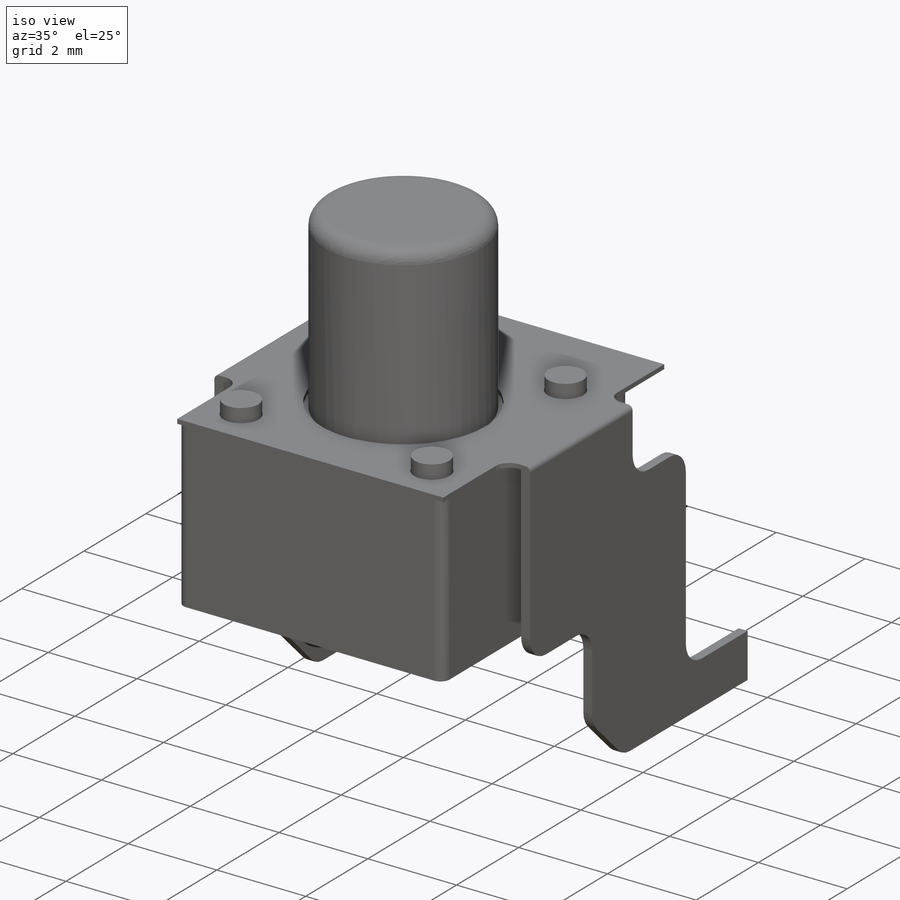
[diagram: iso view]
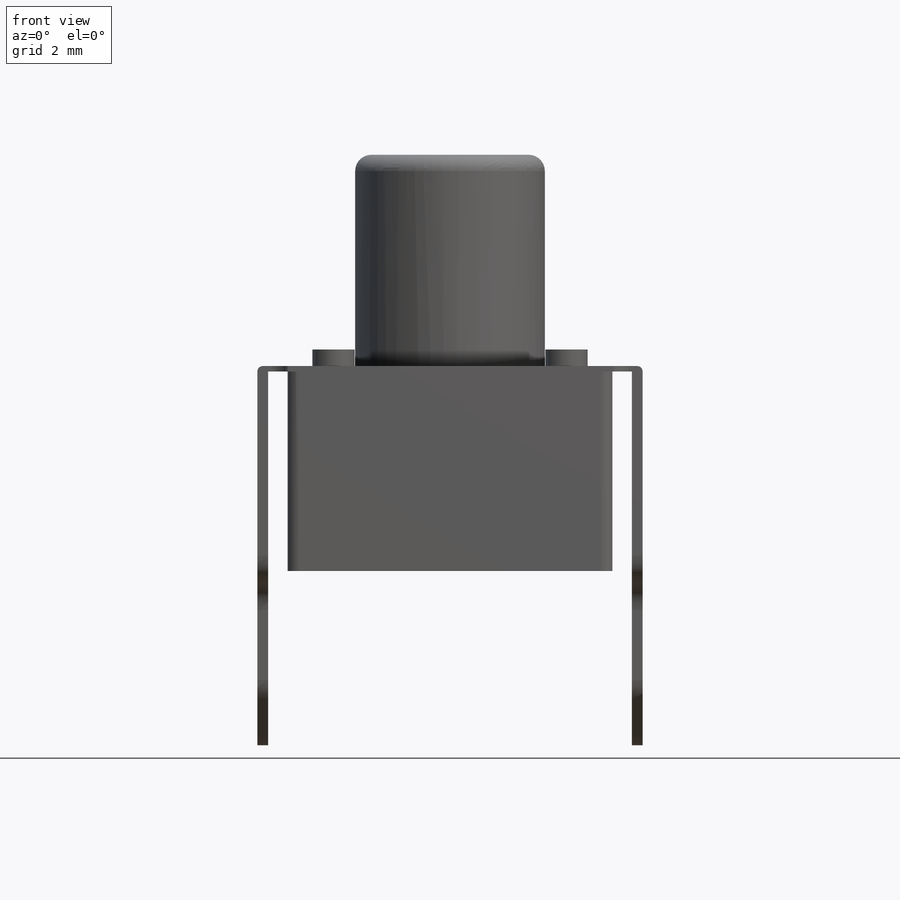
[diagram: front view]
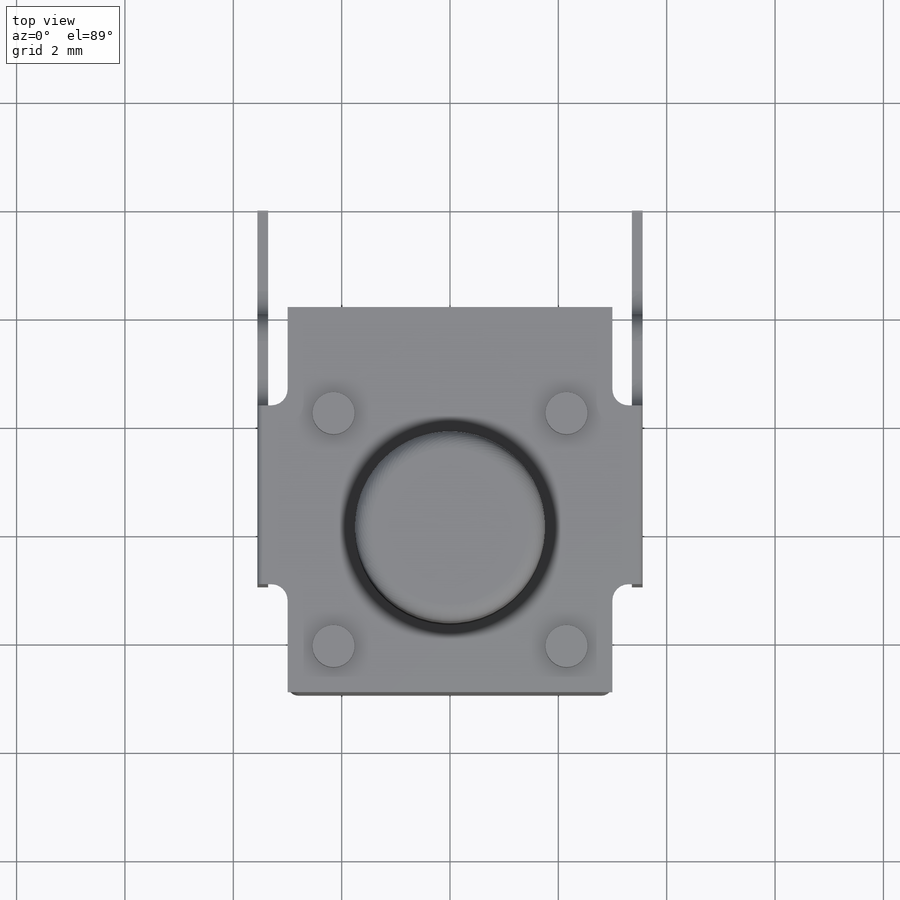
[diagram: top view]
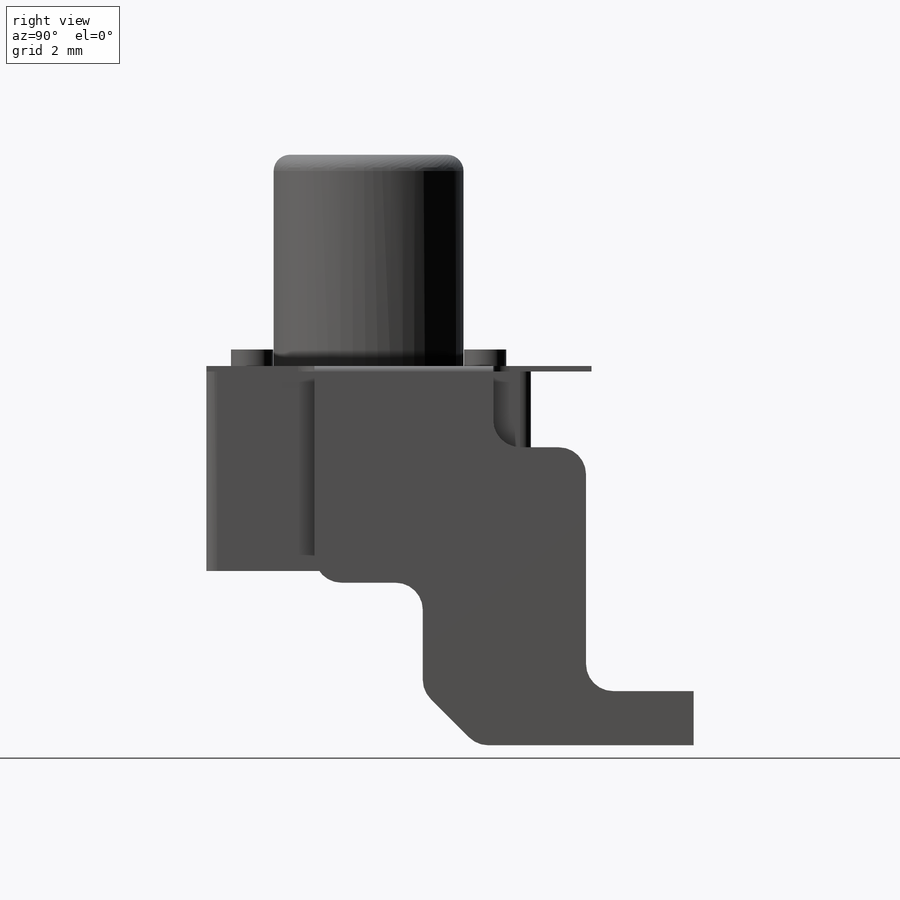
[diagram: right view]
SOLIDWORKS PART (.sldprt)
format: sldprt  version: not decoded by parser v0  size: 361,984 bytes
history: native  units: mm
features: sketch x7, extrude x5, fillet x4, plane x2, material x1, mirror x1 (+12 scaffold rows collapsed)
feature tree (32):
  scaffold x12  (default folders/planes/origin — collapsed)
  material  "Material <not specified>"
  sketch  "Sketch4"  dims[c1.D1=7.0mm c1.D2=4.0mm c1.D3=7.0mm c1.D4=5.0mm c1.D5=1.5mm c1.D6=3.3mm c1.D7=1.0mm c1.D8=2.0mm c1.D9=1.0mm c1.D10=0.1mm c2.D4=4.0132mm]
  sketch  "Sketch1"  dims[D1=5.9944mm D2=5.99mm]
  extrude  "Extrude1"  Depth=3.683mm
  sketch  "Sketch2"  dims[D1=3.5052mm]
  sketch  "Sketch7"  dims[D2=7.112mm D1=0.0mm]
  plane  "Plane2"
  sketch  "Sketch5"  dims[D1=0.0mm]
  extrude  "Extrude2"  Depth=0.2mm
  fillet  "Fillet3"  Radius=0.5mm
  mirror  "Mirror1"
  sketch  "Sketch6"  dims[c1.D1=3.25mm c1.D3=0.3mm c1.D5=0.8mm c2.D1=0.1mm c2.D4=7.11mm c2.D6=4.3mm c2.D2=0.0mm]
  extrude  "Extrude3"  [1 undecoded]
  extrude  "Extrude4"  Depth=4mm
  fillet  "Fillet1"  Radius=0.1mm
  plane  "Plane1"  Offset=4.01mm
  sketch  "Sketch8"  dims[D1=0.1mm]
  extrude  "Boss-Extrude1"  Depth=0.3048mm
  fillet  "Fillet4"  Radius=0.2mm
  fillet  "Fillet5"  Radius=0.3mm
decode coverage: 15 of 17 modeling features carry decoded parameters
note: 1 parameter value undecoded
note: suppression state not decoded; provenance and decode notes live in map.json
